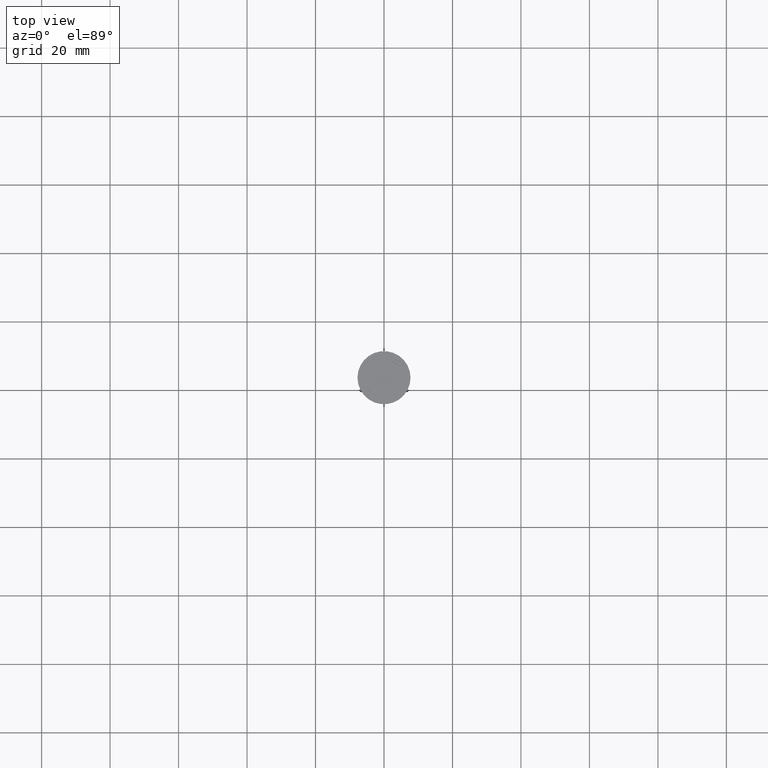
[diagram: clean part render]
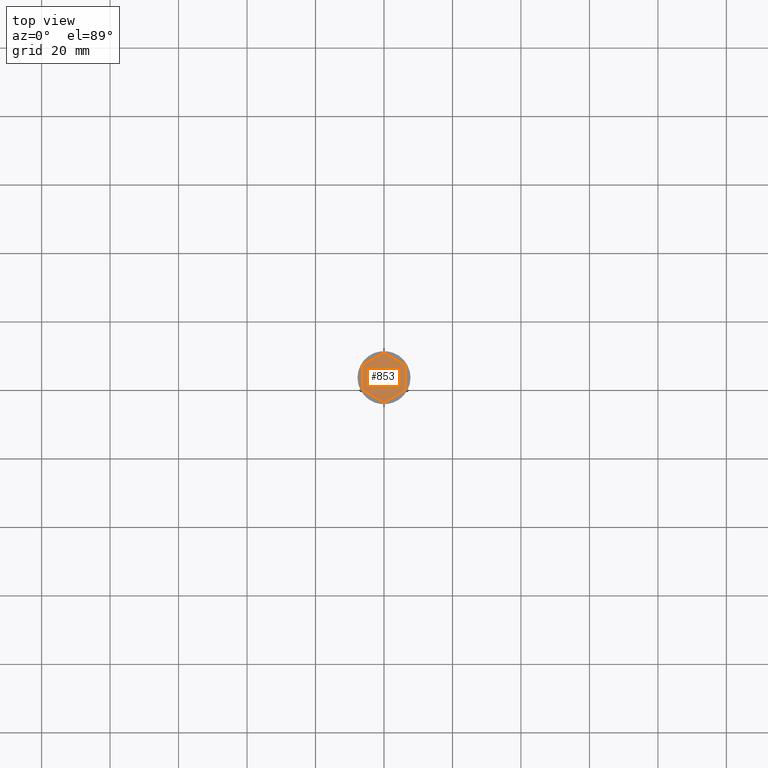
[diagram: same view with one face highlighted and labeled with its STEP entity id]
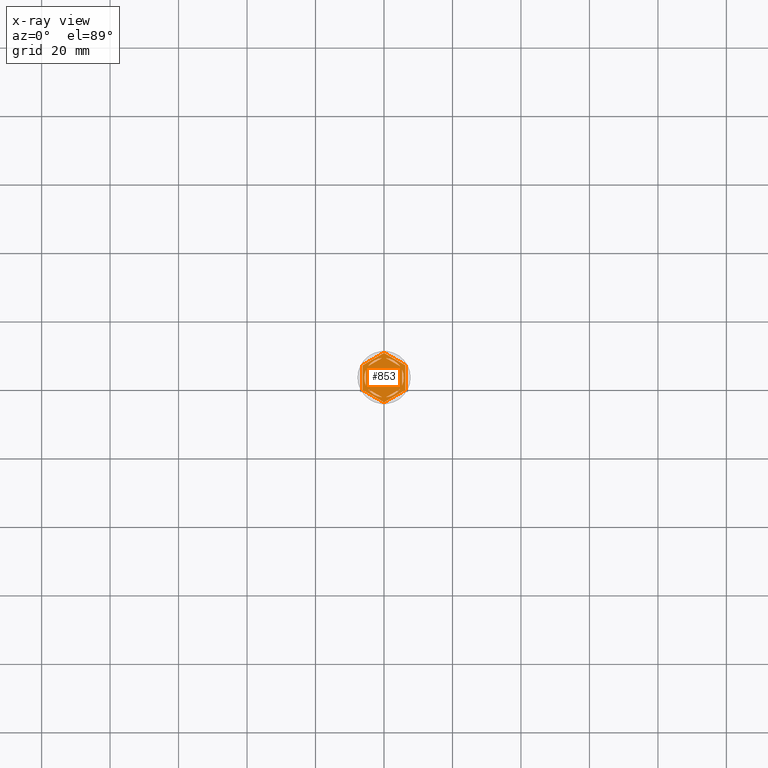
[diagram: x-ray of the same camera — body ghosted, the highlighted face saturated]
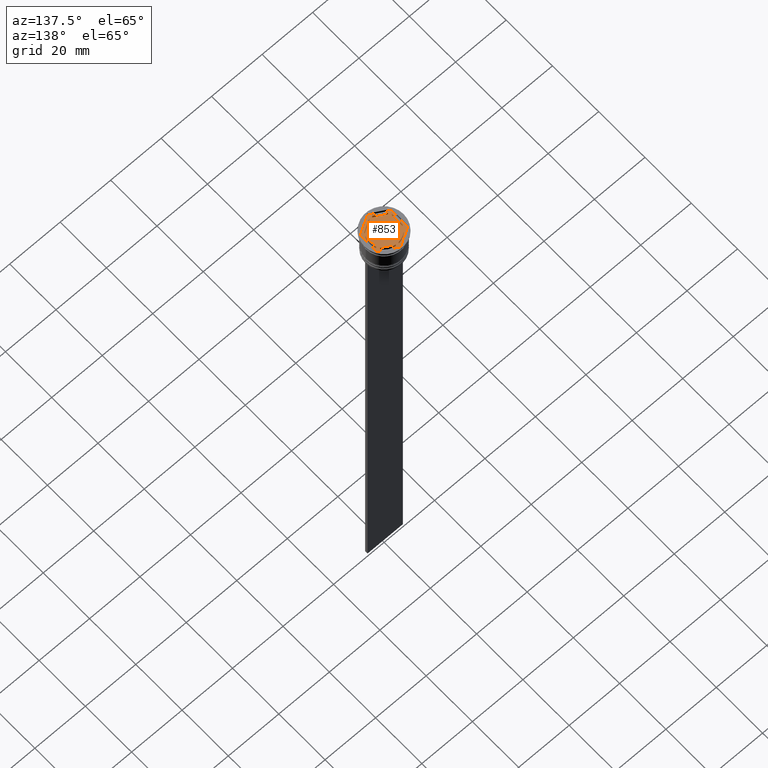
[diagram: same view with one face highlighted and labeled with its STEP entity id]
A machine part, top view. The second image highlights one B-rep face of the part: STEP entity #853.
The next image is the same camera in x-ray: the body ghosted, the highlighted face saturated — about 0% of this face is hidden behind the body in this view.
A second angle (auxiliary view) of the same face is appended — the face is thin or edge-on in the first view.
In plain terms, the highlighted planar face has unit normal (0, 0, 1).
Its self-contained STEP definition (entity closure, byte-faithful):
#14 = DIRECTION ( 'NONE',  ( 0.8660254037844385966, -0.4999999999999998890, 0.000000000000000000 ) ) ;
#19 = AXIS2_PLACEMENT_3D ( 'NONE', #1179, #1012, #1732 ) ;
#24 = CIRCLE ( 'NONE', #1651, 5.750000000000000000 ) ;
#40 = EDGE_CURVE ( 'NONE', #1442, #420, #1460, .T. ) ;
#44 = DIRECTION ( 'NONE',  ( 0.000000000000000000, 0.000000000000000000, 1.000000000000000000 ) ) ;
#53 = CIRCLE ( 'NONE', #319, 5.750000000000000000 ) ;
#97 = CARTESIAN_POINT ( 'NONE',  ( -6.249999999999999112, 3.608439182435158710, -1.000000000000000000 ) ) ;
#109 = VERTEX_POINT ( 'NONE', #559 ) ;
#113 = CARTESIAN_POINT ( 'NONE',  ( 0.000000000000000000, 0.000000000000000000, -1.000000000000000000 ) ) ;
#153 = DIRECTION ( 'NONE',  ( 0.000000000000000000, 1.000000000000000000, 0.000000000000000000 ) ) ;
#162 = VERTEX_POINT ( 'NONE', #594 ) ;
#172 = AXIS2_PLACEMENT_3D ( 'NONE', #113, #1393, #669 ) ;
#176 = EDGE_CURVE ( 'NONE', #109, #2002, #2206, .T. ) ;
#180 = VERTEX_POINT ( 'NONE', #251 ) ;
#184 = CARTESIAN_POINT ( 'NONE',  ( 0.5939903988410126789, 5.719237309824160675, -1.000000000000000888 ) ) ;
#185 = DIRECTION ( 'NONE',  ( 0.000000000000000000, 0.000000000000000000, 1.000000000000000000 ) ) ;
#189 = CARTESIAN_POINT ( 'NONE',  ( 0.000000000000000000, 0.000000000000000000, -1.000000000000000000 ) ) ;
#193 = VERTEX_POINT ( 'NONE', #1880 ) ;
#196 = ORIENTED_EDGE ( 'NONE', *, *, #417, .F. ) ;
#222 = CARTESIAN_POINT ( 'NONE',  ( 0.000000000000000000, 0.000000000000000000, -1.000000000000000000 ) ) ;
#251 = CARTESIAN_POINT ( 'NONE',  ( 0.5939903988410074609, -5.719237309824160675, -1.000000000000000888 ) ) ;
#301 = EDGE_LOOP ( 'NONE', ( #1138, #969 ) ) ;
#314 = CARTESIAN_POINT ( 'NONE',  ( -6.249999999999999112, 3.608439182435158710, -1.000000000000000000 ) ) ;
#319 = AXIS2_PLACEMENT_3D ( 'NONE', #531, #2189, #351 ) ;
#326 = CARTESIAN_POINT ( 'NONE',  ( 4.656009601158990208, -3.374029429912445810, -1.000000000000000888 ) ) ;
#348 = FACE_OUTER_BOUND ( 'NONE', #2034, .T. ) ;
#351 = DIRECTION ( 'NONE',  ( 1.000000000000000000, 0.000000000000000000, 0.000000000000000000 ) ) ;
#355 = CIRCLE ( 'NONE', #2019, 5.750000000000000000 ) ;
#380 = DIRECTION ( 'NONE',  ( 0.000000000000000000, 0.000000000000000000, 1.000000000000000000 ) ) ;
#389 = VECTOR ( 'NONE', #547, 1000.000000000000000 ) ;
#400 = EDGE_LOOP ( 'NONE', ( #480, #974, #196 ) ) ;
#417 = EDGE_CURVE ( 'NONE', #2002, #1173, #53, .T. ) ;
#420 = VERTEX_POINT ( 'NONE', #567 ) ;
#443 = CARTESIAN_POINT ( 'NONE',  ( 0.000000000000000000, 0.000000000000000000, -1.000000000000000000 ) ) ;
#455 = CARTESIAN_POINT ( 'NONE',  ( 5.249999999999997335, 3.031088913245537864, -1.000000000000000888 ) ) ;
#460 = CARTESIAN_POINT ( 'NONE',  ( 6.249999999999998224, -3.608439182435161374, -1.000000000000000000 ) ) ;
#464 = VERTEX_POINT ( 'NONE', #541 ) ;
#475 = EDGE_CURVE ( 'NONE', #1903, #861, #355, .T. ) ;
#480 = ORIENTED_EDGE ( 'NONE', *, *, #176, .F. ) ;
#483 = DIRECTION ( 'NONE',  ( -0.8660254037844388186, 0.4999999999999997224, 0.000000000000000000 ) ) ;
#493 = CARTESIAN_POINT ( 'NONE',  ( -5.249999999999999112, -3.031088913245534311, -1.000000000000000888 ) ) ;
#494 = DIRECTION ( 'NONE',  ( 0.8660254037844385966, 0.5000000000000001110, 0.000000000000000000 ) ) ;
#518 = CARTESIAN_POINT ( 'NONE',  ( 0.000000000000000000, 0.000000000000000000, -1.000000000000000000 ) ) ;
#528 = FACE_BOUND ( 'NONE', #1287, .T. ) ;
#531 = CARTESIAN_POINT ( 'NONE',  ( 0.000000000000000000, 0.000000000000000000, -1.000000000000000000 ) ) ;
#541 = CARTESIAN_POINT ( 'NONE',  ( -6.249999999999999112, -3.608439182435161374, -1.000000000000000000 ) ) ;
#547 = DIRECTION ( 'NONE',  ( 0.8660254037844387076, 0.4999999999999999445, -0.000000000000000000 ) ) ;
#553 = FACE_BOUND ( 'NONE', #1265, .T. ) ;
#559 = CARTESIAN_POINT ( 'NONE',  ( -5.249999999999999112, 2.345207879911715310, -1.000000000000000888 ) ) ;
#567 = CARTESIAN_POINT ( 'NONE',  ( -0.5939903988410105695, 5.719237309824159787, -1.000000000000000888 ) ) ;
#572 = DIRECTION ( 'NONE',  ( 1.000000000000000000, 0.000000000000000000, 0.000000000000000000 ) ) ;
#592 = EDGE_CURVE ( 'NONE', #861, #1903, #2224, .T. ) ;
#594 = CARTESIAN_POINT ( 'NONE',  ( 5.249999999999997335, 2.345207879911718862, -1.000000000000000888 ) ) ;
#620 = VECTOR ( 'NONE', #699, 1000.000000000000000 ) ;
#631 = DIRECTION ( 'NONE',  ( 0.000000000000000000, 0.000000000000000000, 1.000000000000000000 ) ) ;
#644 = DIRECTION ( 'NONE',  ( -0.8660254037844384856, 0.5000000000000002220, 0.000000000000000000 ) ) ;
#667 = EDGE_LOOP ( 'NONE', ( #1824, #2043 ) ) ;
#669 = DIRECTION ( 'NONE',  ( 1.000000000000000000, 0.000000000000000000, 0.000000000000000000 ) ) ;
#671 = CARTESIAN_POINT ( 'NONE',  ( -5.249999999999999112, 3.031088913245535199, -1.000000000000000888 ) ) ;
#674 = EDGE_CURVE ( 'NONE', #1764, #162, #890, .T. ) ;
#677 = EDGE_CURVE ( 'NONE', #1555, #1081, #2116, .T. ) ;
#680 = CARTESIAN_POINT ( 'NONE',  ( 0.000000000000000000, 7.216878364870320084, -1.000000000000000000 ) ) ;
#699 = DIRECTION ( 'NONE',  ( -1.430775808321103440E-16, -1.000000000000000000, 0.000000000000000000 ) ) ;
#705 = LINE ( 'NONE', #834, #2255 ) ;
#719 = EDGE_CURVE ( 'NONE', #1173, #109, #1611, .T. ) ;
#730 = ORIENTED_EDGE ( 'NONE', *, *, #1923, .F. ) ;
#733 = EDGE_CURVE ( 'NONE', #1815, #1238, #1767, .T. ) ;
#834 = CARTESIAN_POINT ( 'NONE',  ( 8.729740977282959667E-16, -7.216878364870321860, -1.000000000000000000 ) ) ;
#853 = ADVANCED_FACE ( 'NONE', ( #528, #553, #1975, #1999, #1811, #1830, #348 ), #1272, .T. ) ;
#854 = VECTOR ( 'NONE', #483, 1000.000000000000000 ) ;
#861 = VERTEX_POINT ( 'NONE', #184 ) ;
#878 = CARTESIAN_POINT ( 'NONE',  ( 6.250000000000000000, 3.608439182435161374, -1.000000000000000000 ) ) ;
#890 = CIRCLE ( 'NONE', #172, 5.750000000000000000 ) ;
#896 = ORIENTED_EDGE ( 'NONE', *, *, #592, .F. ) ;
#923 = VECTOR ( 'NONE', #1576, 1000.000000000000114 ) ;
#969 = ORIENTED_EDGE ( 'NONE', *, *, #40, .F. ) ;
#974 = ORIENTED_EDGE ( 'NONE', *, *, #719, .F. ) ;
#997 = AXIS2_PLACEMENT_3D ( 'NONE', #443, #631, #1508 ) ;
#1012 = DIRECTION ( 'NONE',  ( 0.000000000000000000, 0.000000000000000000, 1.000000000000000000 ) ) ;
#1026 = ORIENTED_EDGE ( 'NONE', *, *, #674, .F. ) ;
#1067 = CARTESIAN_POINT ( 'NONE',  ( -5.750000000000000000, 0.000000000000000000, -1.000000000000000000 ) ) ;
#1069 = DIRECTION ( 'NONE',  ( 1.000000000000000000, 0.000000000000000000, -0.000000000000000000 ) ) ;
#1081 = VERTEX_POINT ( 'NONE', #2240 ) ;
#1110 = VECTOR ( 'NONE', #644, 1000.000000000000114 ) ;
#1138 = ORIENTED_EDGE ( 'NONE', *, *, #1602, .F. ) ;
#1143 = ORIENTED_EDGE ( 'NONE', *, *, #1242, .T. ) ;
#1173 = VERTEX_POINT ( 'NONE', #1398 ) ;
#1179 = CARTESIAN_POINT ( 'NONE',  ( 0.000000000000000000, 0.000000000000000000, -1.000000000000000000 ) ) ;
#1182 = ORIENTED_EDGE ( 'NONE', *, *, #475, .F. ) ;
#1184 = VECTOR ( 'NONE', #1727, 1000.000000000000114 ) ;
#1198 = ORIENTED_EDGE ( 'NONE', *, *, #733, .T. ) ;
#1201 = CARTESIAN_POINT ( 'NONE',  ( -4.656009601158989319, 3.374029429912446698, -1.000000000000000888 ) ) ;
#1217 = DIRECTION ( 'NONE',  ( -0.8660254037844387076, -0.4999999999999997224, 0.000000000000000000 ) ) ;
#1221 = VECTOR ( 'NONE', #1558, 1000.000000000000000 ) ;
#1234 = DIRECTION ( 'NONE',  ( 0.000000000000000000, -1.000000000000000000, 0.000000000000000000 ) ) ;
#1238 = VERTEX_POINT ( 'NONE', #2077 ) ;
#1242 = EDGE_CURVE ( 'NONE', #1392, #464, #1718, .T. ) ;
#1244 = CARTESIAN_POINT ( 'NONE',  ( -6.249999999999999112, -3.608439182435161374, -1.000000000000000000 ) ) ;
#1254 = LINE ( 'NONE', #1244, #1261 ) ;
#1261 = VECTOR ( 'NONE', #14, 1000.000000000000227 ) ;
#1265 = EDGE_LOOP ( 'NONE', ( #1026, #1362 ) ) ;
#1272 = PLANE ( 'NONE',  #1300 ) ;
#1287 = EDGE_LOOP ( 'NONE', ( #1182, #896 ) ) ;
#1300 = AXIS2_PLACEMENT_3D ( 'NONE', #518, #380, #1069 ) ;
#1310 = EDGE_CURVE ( 'NONE', #162, #1764, #1615, .T. ) ;
#1335 = CARTESIAN_POINT ( 'NONE',  ( 0.000000000000000000, 0.000000000000000000, -1.000000000000000000 ) ) ;
#1341 = EDGE_CURVE ( 'NONE', #1238, #1392, #1430, .T. ) ;
#1362 = ORIENTED_EDGE ( 'NONE', *, *, #1310, .F. ) ;
#1365 = EDGE_CURVE ( 'NONE', #193, #2222, #705, .T. ) ;
#1392 = VERTEX_POINT ( 'NONE', #314 ) ;
#1393 = DIRECTION ( 'NONE',  ( 0.000000000000000000, 0.000000000000000000, 1.000000000000000000 ) ) ;
#1398 = CARTESIAN_POINT ( 'NONE',  ( -5.249999999999999112, -2.345207879911715310, -1.000000000000000888 ) ) ;
#1400 = EDGE_CURVE ( 'NONE', #2222, #1815, #1765, .T. ) ;
#1402 = ORIENTED_EDGE ( 'NONE', *, *, #1960, .T. ) ;
#1430 = LINE ( 'NONE', #680, #923 ) ;
#1442 = VERTEX_POINT ( 'NONE', #1201 ) ;
#1460 = LINE ( 'NONE', #2306, #389 ) ;
#1508 = DIRECTION ( 'NONE',  ( 1.000000000000000000, 0.000000000000000000, 0.000000000000000000 ) ) ;
#1555 = VERTEX_POINT ( 'NONE', #1823 ) ;
#1558 = DIRECTION ( 'NONE',  ( 2.403703357979454647E-16, 1.000000000000000000, 0.000000000000000000 ) ) ;
#1576 = DIRECTION ( 'NONE',  ( -0.8660254037844385966, -0.5000000000000001110, 0.000000000000000000 ) ) ;
#1578 = CARTESIAN_POINT ( 'NONE',  ( 6.250000000000000000, 3.608439182435161374, -1.000000000000000000 ) ) ;
#1602 = EDGE_CURVE ( 'NONE', #420, #1442, #24, .T. ) ;
#1611 = LINE ( 'NONE', #671, #1878 ) ;
#1615 = LINE ( 'NONE', #2323, #620 ) ;
#1632 = DIRECTION ( 'NONE',  ( 1.000000000000000000, 0.000000000000000000, 0.000000000000000000 ) ) ;
#1651 = AXIS2_PLACEMENT_3D ( 'NONE', #222, #185, #572 ) ;
#1670 = DIRECTION ( 'NONE',  ( 0.000000000000000000, 0.000000000000000000, 1.000000000000000000 ) ) ;
#1679 = CIRCLE ( 'NONE', #19, 5.750000000000000000 ) ;
#1702 = EDGE_CURVE ( 'NONE', #1081, #1555, #2018, .T. ) ;
#1718 = LINE ( 'NONE', #97, #2216 ) ;
#1721 = CARTESIAN_POINT ( 'NONE',  ( 5.249999999999997335, -2.345207879911720639, -1.000000000000000888 ) ) ;
#1726 = EDGE_LOOP ( 'NONE', ( #730, #2075 ) ) ;
#1727 = DIRECTION ( 'NONE',  ( 0.8660254037844387076, -0.4999999999999998335, 0.000000000000000000 ) ) ;
#1732 = DIRECTION ( 'NONE',  ( 1.000000000000000000, 0.000000000000000000, 0.000000000000000000 ) ) ;
#1753 = AXIS2_PLACEMENT_3D ( 'NONE', #1335, #1670, #1863 ) ;
#1764 = VERTEX_POINT ( 'NONE', #1721 ) ;
#1765 = LINE ( 'NONE', #2127, #1221 ) ;
#1767 = LINE ( 'NONE', #1578, #854 ) ;
#1772 = CARTESIAN_POINT ( 'NONE',  ( -1.734723475976807094E-15, -6.062177826491069510, -1.000000000000000888 ) ) ;
#1811 = FACE_BOUND ( 'NONE', #400, .T. ) ;
#1813 = EDGE_CURVE ( 'NONE', #1896, #180, #1915, .T. ) ;
#1815 = VERTEX_POINT ( 'NONE', #878 ) ;
#1823 = CARTESIAN_POINT ( 'NONE',  ( -0.5939903988410105695, -5.719237309824160675, -1.000000000000000888 ) ) ;
#1824 = ORIENTED_EDGE ( 'NONE', *, *, #1702, .F. ) ;
#1830 = FACE_BOUND ( 'NONE', #301, .T. ) ;
#1863 = DIRECTION ( 'NONE',  ( 1.000000000000000000, 0.000000000000000000, 0.000000000000000000 ) ) ;
#1878 = VECTOR ( 'NONE', #153, 1000.000000000000000 ) ;
#1879 = ORIENTED_EDGE ( 'NONE', *, *, #1341, .T. ) ;
#1880 = CARTESIAN_POINT ( 'NONE',  ( 8.729740977282959667E-16, -7.216878364870321860, -1.000000000000000000 ) ) ;
#1896 = VERTEX_POINT ( 'NONE', #326 ) ;
#1903 = VERTEX_POINT ( 'NONE', #2135 ) ;
#1915 = LINE ( 'NONE', #1772, #2174 ) ;
#1923 = EDGE_CURVE ( 'NONE', #180, #1896, #1679, .T. ) ;
#1960 = EDGE_CURVE ( 'NONE', #464, #193, #1254, .T. ) ;
#1975 = FACE_BOUND ( 'NONE', #1726, .T. ) ;
#1999 = FACE_BOUND ( 'NONE', #667, .T. ) ;
#2002 = VERTEX_POINT ( 'NONE', #1067 ) ;
#2018 = CIRCLE ( 'NONE', #997, 5.750000000000000000 ) ;
#2019 = AXIS2_PLACEMENT_3D ( 'NONE', #189, #44, #1632 ) ;
#2034 = EDGE_LOOP ( 'NONE', ( #1198, #1879, #1143, #1402, #2339, #2061 ) ) ;
#2043 = ORIENTED_EDGE ( 'NONE', *, *, #677, .F. ) ;
#2061 = ORIENTED_EDGE ( 'NONE', *, *, #1400, .T. ) ;
#2075 = ORIENTED_EDGE ( 'NONE', *, *, #1813, .F. ) ;
#2077 = CARTESIAN_POINT ( 'NONE',  ( 0.000000000000000000, 7.216878364870320084, -1.000000000000000000 ) ) ;
#2116 = LINE ( 'NONE', #493, #1110 ) ;
#2127 = CARTESIAN_POINT ( 'NONE',  ( 6.249999999999998224, -3.608439182435161374, -1.000000000000000000 ) ) ;
#2135 = CARTESIAN_POINT ( 'NONE',  ( 4.656009601158988431, 3.374029429912448919, -1.000000000000000888 ) ) ;
#2174 = VECTOR ( 'NONE', #1217, 1000.000000000000114 ) ;
#2189 = DIRECTION ( 'NONE',  ( 0.000000000000000000, 0.000000000000000000, 1.000000000000000000 ) ) ;
#2206 = CIRCLE ( 'NONE', #1753, 5.750000000000000000 ) ;
#2216 = VECTOR ( 'NONE', #1234, 1000.000000000000000 ) ;
#2222 = VERTEX_POINT ( 'NONE', #460 ) ;
#2224 = LINE ( 'NONE', #455, #1184 ) ;
#2240 = CARTESIAN_POINT ( 'NONE',  ( -4.656009601158991096, -3.374029429912444034, -1.000000000000000888 ) ) ;
#2255 = VECTOR ( 'NONE', #494, 1000.000000000000000 ) ;
#2306 = CARTESIAN_POINT ( 'NONE',  ( 8.673617379884035472E-16, 6.062177826491070398, -1.000000000000000888 ) ) ;
#2323 = CARTESIAN_POINT ( 'NONE',  ( 5.249999999999996447, -3.031088913245536975, -1.000000000000000888 ) ) ;
#2339 = ORIENTED_EDGE ( 'NONE', *, *, #1365, .T. ) ;